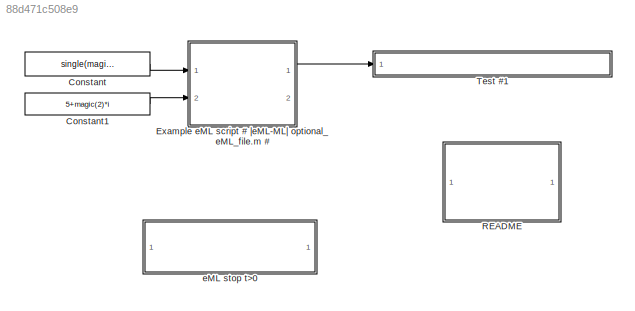
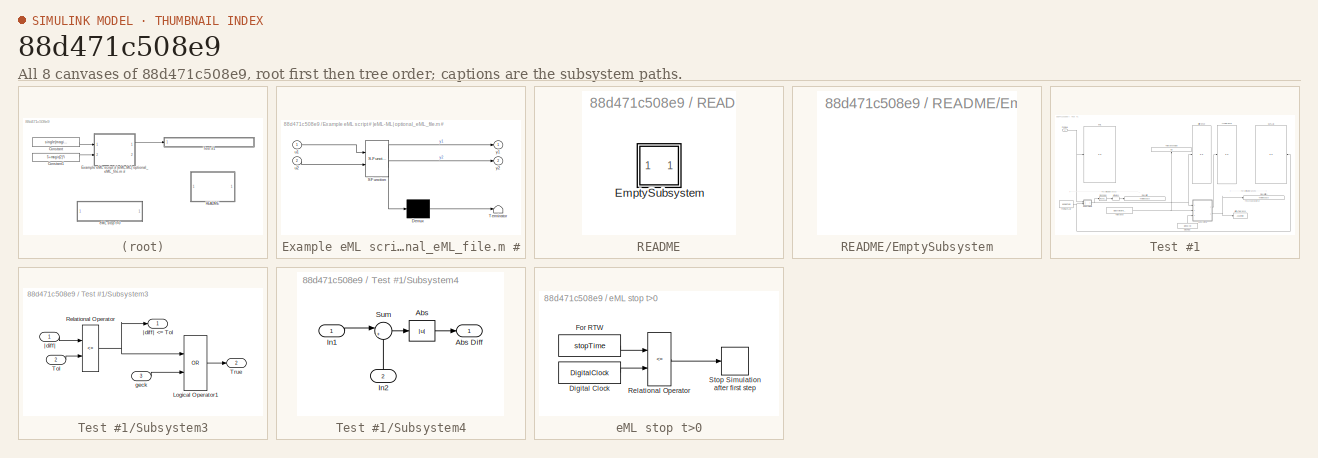
[diagram: thumbnail index - all 8 canvases of the model, root first then tree order]
MODEL slx_88d471c508e9
KIND library
CONFIG AbsTol = auto
CONFIG EnableMultiTasking = off
CONFIG FixedStep = auto
CONFIG MaxStep = auto
CONFIG MinStep = auto
CONFIG RelTol = 1e-3
CONFIG SampleTimeConstraint = Unconstrained
CONFIG Solver = ode45
CONFIG SolverName = ode45
CONFIG StartTime = 0.0
CONFIG StopTime = 10.0
BLOCK [Constant] Constant
  Value = single(magic(4))
BLOCK [Constant] Constant1
  Value = 5+magic(2)*i
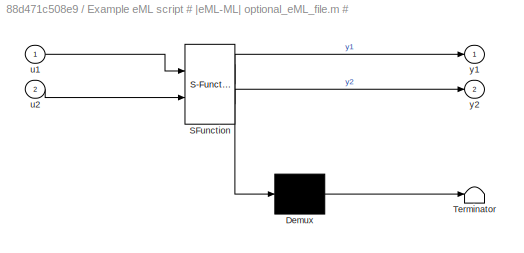
BLOCK [SubSystem] Example eML script # |eML-ML| optional_eML_file.m #
  ErrorFcn = Stateflow.Translate.translate
  PermitHierarchicalResolution = ExplicitOnly
  Ports = [2, 2]
  RequestExecContextInheritance = off
  SFBlockType = MATLAB Function
  TreatAsAtomicUnit = on
  Variant = off
BLOCK [Demux] Example eML script # |eML-ML| optional_eML_file.m #/ Demux 
  Outputs = 1
  Ports = [1, 1]
BLOCK [S-Function] Example eML script # |eML-ML| optional_eML_file.m #/ SFunction 
  EnableBusSupport = off
  FunctionName = sf_sfun
  PortCounts = [2 3]
  Ports = [2, 3]
  SFcnIsStateOwnerBlock = off
  SFunctionDeploymentMode = off
  Tag = Stateflow S-Function eml_evalin_matlab_lib 2
BLOCK [Terminator] Example eML script # |eML-ML| optional_eML_file.m #/ Terminator 
BLOCK [Inport] Example eML script # |eML-ML| optional_eML_file.m #/u1
  IconDisplay = Port number
BLOCK [Inport] Example eML script # |eML-ML| optional_eML_file.m #/u2
  IconDisplay = Port number
  Port = 2
BLOCK [Outport] Example eML script # |eML-ML| optional_eML_file.m #/y1
  IconDisplay = Port number
BLOCK [Outport] Example eML script # |eML-ML| optional_eML_file.m #/y2
  IconDisplay = Port number
  Port = 2
BLOCK [SubSystem] README
  CopyFcn = docblock('breaklink',gcb);
  DeleteFcn = docblock('close_document',gcb);
  OpenFcn = docblock('edit_document',gcb);
  Ports = []
  PreSaveFcn = docblock('save_document',gcb);
  RequestExecContextInheritance = off
  Variant = off
BLOCK [SubSystem] README/EmptySubsystem
  Ports = []
  RequestExecContextInheritance = off
  Variant = off
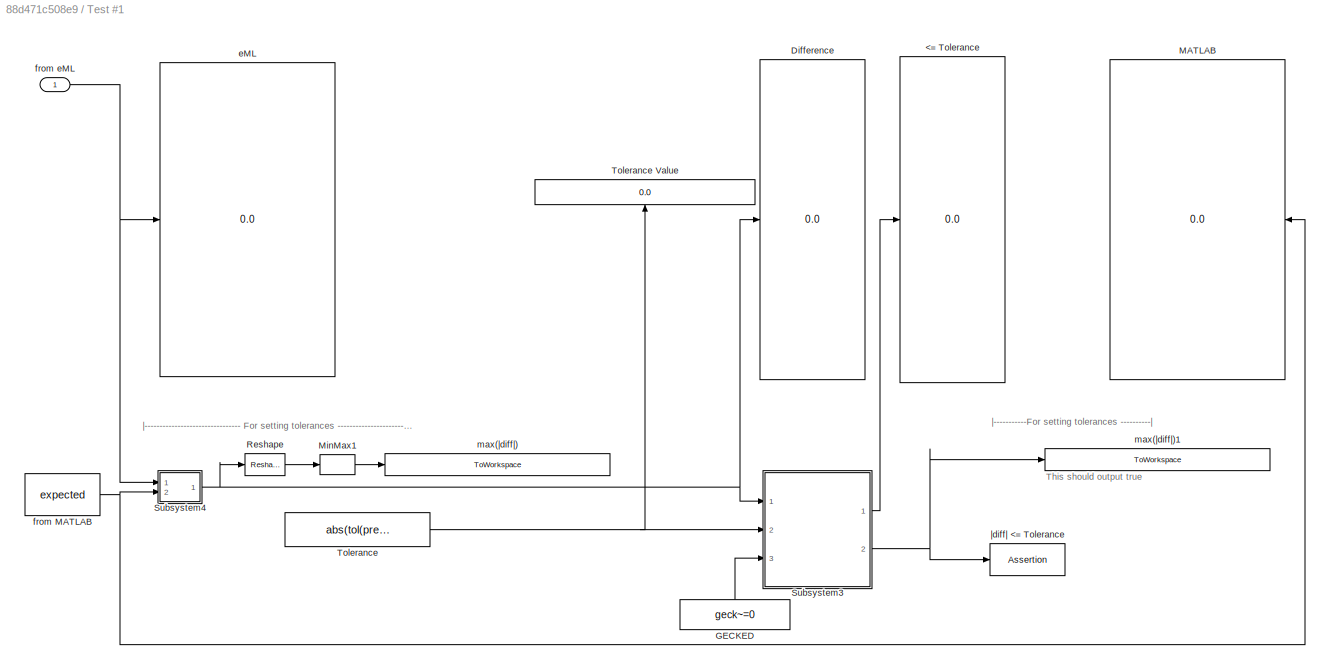
BLOCK [SubSystem] Test #1
  InitFcn = set_param(gcb,'BackgroundColor','orange');             \n                                                       \n                                                       \nif(exist('DO_EML_SINGLE', 'var') && DO_EML_SINGLE == 1)\n    set_param(gcb, 'precision', '2');                  \nelse                                                   \n    set_param(gcb, 'precision', '1');                  \nend
  Ports = [1]
  RequestExecContextInheritance = off
  StopFcn = set_param(gcb,'BackgroundColor','cyan');
  Variant = off
BLOCK [Display] Test #1/<= Tolerance
  Decimation = 1
  Ports = [1]
BLOCK [Display] Test #1/Difference
  Decimation = 1
  Ports = [1]
BLOCK [Constant] Test #1/GECKED
  Value = geck~=0
BLOCK [Display] Test #1/MATLAB
  Decimation = 1
  Format = long
  Ports = [1]
BLOCK [MinMax] Test #1/MinMax1
  Function = max
  Ports = [1, 1]
BLOCK [Reshape] Test #1/Reshape
  Ports = [1, 1]
BLOCK [SubSystem] Test #1/Subsystem3
  Ports = [3, 2]
  RequestExecContextInheritance = off
  Variant = off
BLOCK [Logic] Test #1/Subsystem3/Logical Operator1
  AllPortsSameDT = off
  Operator = OR
  Ports = [2, 1]
BLOCK [RelationalOperator] Test #1/Subsystem3/Relational Operator
  InputSameDT = off
  Operator = <=
  Ports = [2, 1]
  ZeroCross = off
BLOCK [Inport] Test #1/Subsystem3/Tol
  IconDisplay = Port number
  Port = 2
BLOCK [Outport] Test #1/Subsystem3/True
  IconDisplay = Port number
  Port = 2
BLOCK [Inport] Test #1/Subsystem3/geck
  IconDisplay = Port number
  Port = 3
BLOCK [Inport] Test #1/Subsystem3/|diff|
  IconDisplay = Port number
BLOCK [Outport] Test #1/Subsystem3/|diff| <= Tol
  IconDisplay = Port number
BLOCK [SubSystem] Test #1/Subsystem4
  Ports = [2, 1]
  RequestExecContextInheritance = off
  Variant = off
BLOCK [Abs] Test #1/Subsystem4/Abs
BLOCK [Outport] Test #1/Subsystem4/Abs Diff
  IconDisplay = Port number
BLOCK [Inport] Test #1/Subsystem4/In1
  IconDisplay = Port number
BLOCK [Inport] Test #1/Subsystem4/In2
  IconDisplay = Port number
  Port = 2
BLOCK [Sum] Test #1/Subsystem4/Sum
  IconShape = round
  InputSameDT = off
  Inputs = |+-
  OutDataTypeStr = Inherit: Inherit via internal rule
  Ports = [2, 1]
BLOCK [Constant] Test #1/Tolerance
  Value = abs(tol(precision))
BLOCK [Display] Test #1/Tolerance Value
  Decimation = 1
  Format = long
  Ports = [1]
BLOCK [Display] Test #1/eML
  Decimation = 1
  Format = long
  Ports = [1]
BLOCK [Constant] Test #1/from MATLAB
  Value = expected
  VectorParams1D = off
BLOCK [Inport] Test #1/from eML
  IconDisplay = Port number
BLOCK [ToWorkspace] Test #1/max(|diff|)
  InitFcn = if(exist('SET_TOL', 'var') & SET_TOL==1)                                                                                                                                                                    \nevalin('base',  ['if(~exist(''max_' strrep(strrep(strrep(gcs, '/', '_'), ' ', '_'), '#', '_') '_p1'')), ' 'max_' strrep(strrep(strrep(gcs, '/', '_'), ' ', '_'), '#', '_') '_p1.signals.values = in...<+1653ch>
  MaxDataPoints = inf
  Ports = [1]
  SampleTime = -1
  SaveFormat = Structure
  StopFcn = if(exist('SET_TOL', 'var') & SET_TOL==1)                                                                                                                                                                                                                                              \n                                                                                                                         ...<+5741ch>
  VariableName = max_AddSubMulDiv_test_sub_Test__1_p
BLOCK [ToWorkspace] Test #1/max(|diff|)1
  InitFcn = set_param(gcb, 'variableName', ['assert_' strrep(strrep(strrep(gcs, '/', '_'), ' ', '_'), '#', '_') '_p' get_param(gcs, 'precision')]);
  MaxDataPoints = inf
  Ports = [1]
  SampleTime = -1
  SaveFormat = Structure
  StopFcn = if(exist('SET_TOL', 'var') & SET_TOL==1)                                                                                                                                                                                                                                              \nset_param(gcs, ['tol' upper(computer)], ['[' num2str(eval(['max_' strrep(strrep(strrep(gcs, '/', '_'), ' ', '_'), '#', '_...<+161ch>
  VariableName = assert_AddSubMulDiv_test_sub_Test__1_p
BLOCK [Assertion] Test #1/|diff| <= Tolerance
  AssertionFailFcn = sf('Private','eml_evalin_matlab','failure')
  Enabled = off
BLOCK [SubSystem] eML stop t>0
  InitFcn = set_param(gcb,'BackgroundColor','orange');
  OpenFcn = eml_do_selective_run;
  Ports = []
  RequestExecContextInheritance = off
  StartFcn = eml_do_selective_run('close');
  StopFcn = set_param(gcb,'BackgroundColor','cyan');
  Tag = eML_evalin_testController
  Variant = off
BLOCK [DigitalClock] eML stop t>0/Digital Clock
BLOCK [Constant] eML stop t>0/For RTW
  Value = stopTime
BLOCK [RelationalOperator] eML stop t>0/Relational Operator
  InputSameDT = off
  Operator = <=
  Ports = [2, 1]
BLOCK [Stop] eML stop t>0/Stop Simulation after first step
ANNOTATION Test #1: This should output true
ANNOTATION Test #1: |-------------------------------- For setting tolerances -----------------------------|
ANNOTATION Test #1: |-----------For setting tolerances ----------|
LINE Constant1:1 -> Example eML script # |eML-ML| optional_eML_file.m #:2
LINE Constant:1 -> Example eML script # |eML-ML| optional_eML_file.m #:1
LINE Example eML script # |eML-ML| optional_eML_file.m #:1 -> Test #1:1
LINE eML stop t>0/Digital Clock:1 -> eML stop t>0/Relational Operator:2
LINE eML stop t>0/For RTW:1 -> eML stop t>0/Relational Operator:1
LINE eML stop t>0/Relational Operator:1 -> eML stop t>0/Stop Simulation after first step:1
CHART Example
eML script
# |eML-ML| optional_eML_file.m # states=1 transitions=1
  STATE_LABEL 'eML_blk_kernel()'
  STATE_LABEL 'SCRIPT:\nfunction [y1,y2]=passthrough(u1,u2)\n% a simple pass through example\n   y1 = u1;\n   y2 = u2;\n\n\n'
